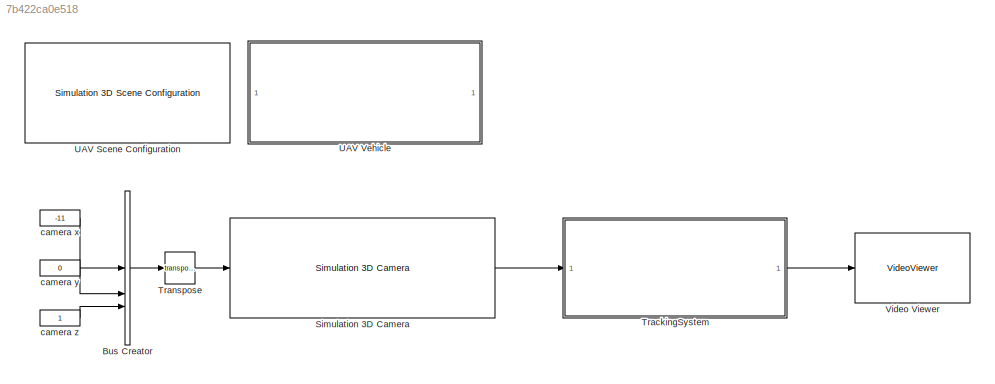
MODEL slx_7b422ca0e518
KIND model
CONFIG AbsTol = auto
CONFIG EnableMultiTasking = off
CONFIG FixedStep = auto
CONFIG MaxStep = auto
CONFIG MinStep = auto
CONFIG RelTol = 1e-3
CONFIG SampleTimeConstraint = Unconstrained
CONFIG SolverName = VariableStepAuto
CONFIG StartTime = 0.0
CONFIG StopTime = 5
BLOCK [BusCreator] Bus Creator
  DisplayOption = bar
  InheritFromInputs = on
  Inputs = 3
BLOCK [Reference] Simulation 3D Camera  REF=sim3dcameralib/Simulation 3D Camera
  LibrarySourceBlock = uavsim3dlib/Simulation 3D Camera
  Priority = 1
  SourceBlock = sim3dcameralib/Simulation 3D Camera
  SourceType = Simulation 3D Camera
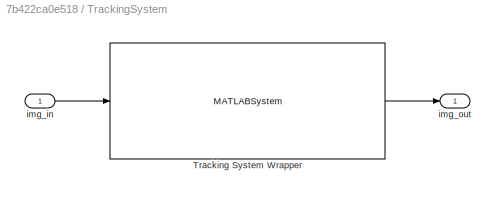
BLOCK [SubSystem] TrackingSystem
BLOCK [MATLABSystem] TrackingSystem/Tracking System Wrapper
  BbCheckMult = 8
  MaskType = TrackingSystem
  MaxImgSize = 800
  RstIntervalMult = 16
  SimulateUsing = Interpreted execution
  System = TrackingSystem
  TextPrompt = drone
  WindowSize = 16
BLOCK [Inport] TrackingSystem/img_in
BLOCK [Outport] TrackingSystem/img_out
BLOCK [Math] Transpose
  Operator = transpose
BLOCK [Reference] UAV Scene Configuration  REF=sim3dlib/Simulation 3D Scene Configuration
  LibrarySourceBlock = uavsim3dlib/Simulation 3D Scene Configuration
  Priority = 0
  SourceBlock = sim3dlib/Simulation 3D Scene Configuration
  SourceType = Simulation 3D Scene Configuration
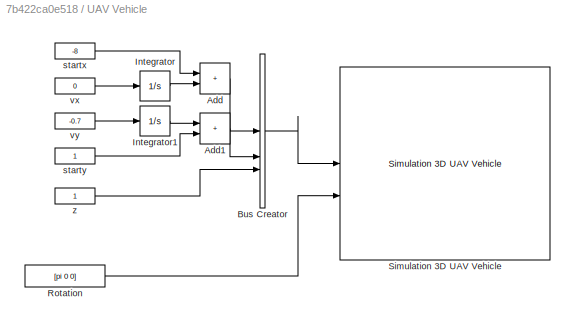
BLOCK [SubSystem] UAV Vehicle
BLOCK [Sum] UAV Vehicle/Add
  IconShape = rectangular
BLOCK [Sum] UAV Vehicle/Add1
  IconShape = rectangular
BLOCK [BusCreator] UAV Vehicle/Bus Creator
  DisplayOption = bar
  InheritFromInputs = on
  Inputs = 3
BLOCK [Integrator] UAV Vehicle/Integrator
BLOCK [Integrator] UAV Vehicle/Integrator1
BLOCK [Constant] UAV Vehicle/Rotation
  Value = [pi 0 0]
BLOCK [Reference] UAV Vehicle/Simulation 3D UAV Vehicle  REF=uavsim3dlib/Simulation 3D UAV Vehicle
  Priority = -1
  SourceBlock = uavsim3dlib/Simulation 3D UAV Vehicle
  SourceType = Simulation 3D UAV Vehicle
BLOCK [Constant] UAV Vehicle/startx
  Value = -8
BLOCK [Constant] UAV Vehicle/starty
BLOCK [Constant] UAV Vehicle/vx
  Value = 0
BLOCK [Constant] UAV Vehicle/vy
  Value = -0.7
BLOCK [Constant] UAV Vehicle/z
BLOCK [VideoViewer] Video Viewer
  FigPos = [835 516 418 304]
  ScopeSpecificationString = vipscopes.VideoViewerScopeCfg('CurrentConfiguration', extmgr.ConfigurationSet(extmgr.Configuration('Core','General UI',true),extmgr.Configuration('Core','Source UI',true),extmgr.Configuration('Sources','WiredSimulink',true),extmgr.Configuration('Visuals','Video',true),extmgr.Configuration('Tools','Image Navigation Tools',true),extmgr.Configuration('Tools','Image Tool',true),extmgr.Configuration('T...<+75ch>
BLOCK [Constant] camera x
  Value = -11
BLOCK [Constant] camera y
  Value = 0
BLOCK [Constant] camera z
LINE Bus Creator:1 -> Transpose:1
LINE Simulation 3D Camera:1 -> TrackingSystem:1
LINE TrackingSystem/Tracking System Wrapper:1 -> TrackingSystem/img_out:1
LINE TrackingSystem/img_in:1 -> TrackingSystem/Tracking System Wrapper:1
LINE TrackingSystem:1 -> Video Viewer:1
LINE Transpose:1 -> Simulation 3D Camera:1
LINE UAV Vehicle/Add1:1 -> UAV Vehicle/Bus Creator:2
LINE UAV Vehicle/Add:1 -> UAV Vehicle/Bus Creator:1
LINE UAV Vehicle/Bus Creator:1 -> UAV Vehicle/Simulation 3D UAV Vehicle:1
LINE UAV Vehicle/Integrator1:1 -> UAV Vehicle/Add1:1
LINE UAV Vehicle/Integrator:1 -> UAV Vehicle/Add:2
LINE UAV Vehicle/Rotation:1 -> UAV Vehicle/Simulation 3D UAV Vehicle:2
LINE UAV Vehicle/startx:1 -> UAV Vehicle/Add:1
LINE UAV Vehicle/starty:1 -> UAV Vehicle/Add1:2
LINE UAV Vehicle/vx:1 -> UAV Vehicle/Integrator:1
LINE UAV Vehicle/vy:1 -> UAV Vehicle/Integrator1:1
LINE UAV Vehicle/z:1 -> UAV Vehicle/Bus Creator:3
LINE camera x:1 -> Bus Creator:1
LINE camera y:1 -> Bus Creator:2
LINE camera z:1 -> Bus Creator:3
